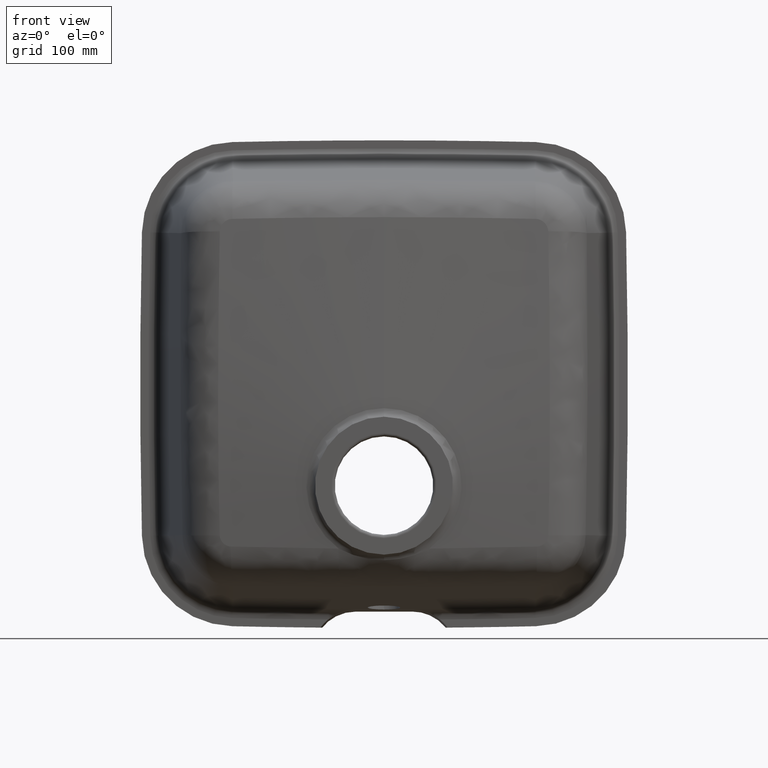
[diagram: clean part render]
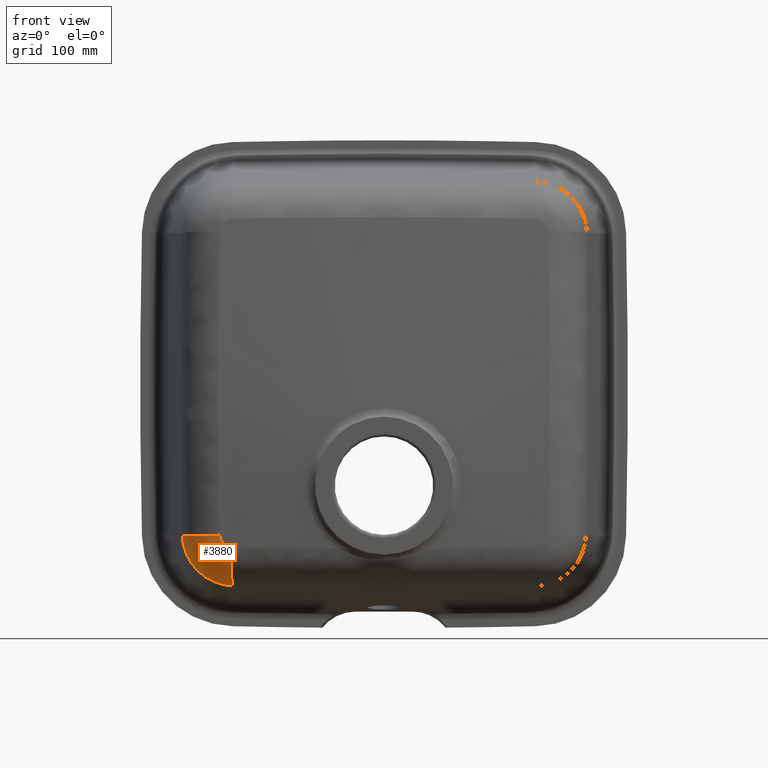
[diagram: same view with one face highlighted and labeled with its STEP entity id]
A machine part, front view. The second image highlights one B-rep face of the part: STEP entity #3880.
In plain terms, the highlighted face is a freeform B-spline surface patch.
Its self-contained STEP definition (entity closure, byte-faithful):
#25 = CARTESIAN_POINT ( 'NONE',  ( -151.1530836234906900, -6.306650159659768400, -140.3912230525803300 ) ) ;
#75 = CARTESIAN_POINT ( 'NONE',  ( -185.7389261621613600, 26.49171849676487500, -139.0273990174659100 ) ) ;
#208 = EDGE_CURVE ( 'NONE', #1592, #2864, #2088, .T. ) ;
#239 = CARTESIAN_POINT ( 'NONE',  ( -144.1516819857101600, -6.599001756632886500, -148.9251165550629700 ) ) ;
#241 = CARTESIAN_POINT ( 'NONE',  ( -151.1699892975891500, -6.305573119774270400, -140.3879739341723800 ) ) ;
#267 = CARTESIAN_POINT ( 'NONE',  ( -171.6593782094991000, -4.172936588961612800, -166.4299843006215600 ) ) ;
#279 = CARTESIAN_POINT ( 'NONE',  ( -142.0951201337946100, 26.05112180240496000, -185.6164131305762900 ) ) ;
#282 = CARTESIAN_POINT ( 'NONE',  ( -169.5437915765407400, 26.41611423768452800, -173.8482333656945400 ) ) ;
#288 = AXIS2_PLACEMENT_3D ( 'NONE', #1827, #4246, #3522 ) ;
#295 = CARTESIAN_POINT ( 'NONE',  ( -167.9301536297951700, -4.335439726647354800, -170.2325963935788000 ) ) ;
#298 = CARTESIAN_POINT ( 'NONE',  ( -184.9877870720284500, 26.51742234490956900, -146.6217716025026300 ) ) ;
#312 = CARTESIAN_POINT ( 'NONE',  ( -149.8723687722938400, -6.312732223593121400, -144.0874012246343100 ) ) ;
#315 = CARTESIAN_POINT ( 'NONE',  ( -170.6726560585034300, 26.42828120081683000, -172.8237046516478900 ) ) ;
#326 = CARTESIAN_POINT ( 'NONE',  ( -181.9262705777755400, -4.041077272516075100, -140.9236976558089500 ) ) ;
#327 = CARTESIAN_POINT ( 'NONE',  ( -147.1451164267944300, -6.428385497107097300, -147.2930047698866100 ) ) ;
#370 = CARTESIAN_POINT ( 'NONE',  ( -151.2598766581469600, -6.321826180499829000, -139.3668954623104000 ) ) ;
#467 = CARTESIAN_POINT ( 'NONE',  ( -140.8557402363300600, -6.817208511991282200, -149.5255113228016100 ) ) ;
#493 =( BOUNDED_SURFACE ( )  B_SPLINE_SURFACE ( 3, 2, ( 
 ( #916, #1275, #4392 ),
 ( #632, #2379, #279 ),
 ( #4400, #4413, #2335 ),
 ( #964, #2690, #945 ),
 ( #3378, #3392, #1677 ),
 ( #239, #3408, #1290 ),
 ( #2360, #3750, #2344 ),
 ( #1645, #4071, #3712 ),
 ( #1975, #614, #2673 ),
 ( #3075, #4099, #4086 ),
 ( #2019, #3721, #4439 ),
 ( #1630, #295, #2732 ),
 ( #4059, #1620, #1994 ),
 ( #3086, #267, #4426 ),
 ( #2008, #2702, #602 ),
 ( #4046, #3059, #3364 ),
 ( #572, #1257, #3031 ),
 ( #4145, #2819, #4473 ),
 ( #312, #3777, #2462 ),
 ( #2751, #3796, #2769 ),
 ( #716, #4456, #1708 ),
 ( #1356, #3502, #3151 ),
 ( #663, #3828, #989 ),
 ( #3437, #644, #2099 ),
 ( #25, #1691, #1053 ),
 ( #2078, #4129, #2407 ),
 ( #370, #326, #4116 ),
 ( #3115, #2061, #1020 ) ),
 .UNSPECIFIED., .F., .F., .F. ) 
 B_SPLINE_SURFACE_WITH_KNOTS ( ( 4, 2, 2, 2, 2, 2, 2, 2, 2, 2, 2, 2, 2, 4 ),
 ( 3, 3 ),
 ( -5.944463671303523700E-015, 0.002003969948534454500, 0.003005954922804654200, 0.004007939897074853900, 0.006011909845615253300, 0.007013894819885452600, 0.008015879794155652800, 0.01001984974269605100, 0.01052084222983115100, 0.01102183471696625100, 0.01202381969123645200, 0.01402778963977685000, 0.01502977461404704900, 0.01603175958831724900 ),
 ( 0.0000000000000000000, 1.000000000000000000 ),
 .UNSPECIFIED. ) 
 GEOMETRIC_REPRESENTATION_ITEM ( )  RATIONAL_B_SPLINE_SURFACE ( (
 ( 1.000000000000000000, 0.7586412035490731600, 1.000000000000000000),
 ( 1.000000000000000000, 0.7600792919562018300, 1.000000000000000000),
 ( 1.000000000000000000, 0.7614240367036120300, 1.000000000000000000),
 ( 1.000000000000000000, 0.7633154890720466000, 1.000000000000000000),
 ( 1.000000000000000000, 0.7639249554272765600, 1.000000000000000000),
 ( 1.000000000000000000, 0.7651028223930810300, 1.000000000000000000),
 ( 1.000000000000000000, 0.7656734576343738900, 1.000000000000000000),
 ( 1.000000000000000000, 0.7672916146730961500, 1.000000000000000000),
 ( 1.000000000000000000, 0.7682560728566036900, 1.000000000000000000),
 ( 1.000000000000000000, 0.7695443249893921800, 1.000000000000000000),
 ( 1.000000000000000000, 0.7699471360606468000, 1.000000000000000000),
 ( 1.000000000000000000, 0.7706993233867750500, 1.000000000000000000),
 ( 1.000000000000000000, 0.7710434007199035200, 1.000000000000000000),
 ( 1.000000000000000000, 0.7719807871079009700, 1.000000000000000000),
 ( 1.000000000000000000, 0.7724820874143542000, 1.000000000000000000),
 ( 1.000000000000000000, 0.7729578046949218100, 1.000000000000000000),
 ( 1.000000000000000000, 0.7730453281340187200, 1.000000000000000000),
 ( 1.000000000000000000, 0.7732049187344870500, 1.000000000000000000),
 ( 1.000000000000000000, 0.7732765643173467000, 1.000000000000000000),
 ( 1.000000000000000000, 0.7734665438936815200, 1.000000000000000000),
 ( 1.000000000000000000, 0.7735604768692248000, 1.000000000000000000),
 ( 1.000000000000000000, 0.7737469151163074400, 1.000000000000000000),
 ( 1.000000000000000000, 0.7737450975335618000, 1.000000000000000000),
 ( 1.000000000000000000, 0.7735456978753442200, 1.000000000000000000),
 ( 1.000000000000000000, 0.7734467391587037700, 1.000000000000000000),
 ( 1.000000000000000000, 0.7731849278249781600, 1.000000000000000000),
 ( 1.000000000000000000, 0.7730219505423058200, 1.000000000000000000),
 ( 1.000000000000000000, 0.7728262095076760000, 1.000000000000000000) ) ) 
 REPRESENTATION_ITEM ( '' )  SURFACE ( )  );
#572 = CARTESIAN_POINT ( 'NONE',  ( -149.6079029753923900, -6.320990211915809500, -144.5310517808796400 ) ) ;
#602 = CARTESIAN_POINT ( 'NONE',  ( -175.8267942922909400, 26.47944738734253500, -167.2729091012128000 ) ) ;
#614 = CARTESIAN_POINT ( 'NONE',  ( -161.5941448021424900, -4.646182537127096200, -175.1635685550052400 ) ) ;
#632 = CARTESIAN_POINT ( 'NONE',  ( -141.5333831271611600, -6.769402553731937100, -149.5116952089091700 ) ) ;
#634 = CARTESIAN_POINT ( 'NONE',  ( -175.8174428182082400, 26.47936513030745300, -167.2851058182518500 ) ) ;
#644 = CARTESIAN_POINT ( 'NONE',  ( -181.2498881193722300, -3.974835855657126200, -146.2237758452321300 ) ) ;
#647 = CARTESIAN_POINT ( 'NONE',  ( -165.9596933220924200, 26.37545172019928000, -176.7025663764929400 ) ) ;
#663 = CARTESIAN_POINT ( 'NONE',  ( -150.8753873108471200, -6.295972461976083100, -141.7409491514041800 ) ) ;
#667 = CARTESIAN_POINT ( 'NONE',  ( -185.7056263732463600, 26.49870064475822000, -140.5593196343159800 ) ) ;
#716 = CARTESIAN_POINT ( 'NONE',  ( -150.2663045561269300, -6.302580362135268300, -143.3288263381980400 ) ) ;
#817 = CARTESIAN_POINT ( 'NONE',  ( -138.1963617451925500, 30.57341635194359200, -148.4677408725759700 ) ) ;
#916 = CARTESIAN_POINT ( 'NONE',  ( -140.8557402363363700, -6.817208511990837200, -149.5255113228014900 ) ) ;
#919 = CARTESIAN_POINT ( 'NONE',  ( -150.2751142471247500, -6.302400865286515800, -143.3096947641860500 ) ) ;
#945 = CARTESIAN_POINT ( 'NONE',  ( -149.5432200394337800, 26.16045370216005500, -184.3090457549388400 ) ) ;
#946 = CARTESIAN_POINT ( 'NONE',  ( -147.6753306916448000, -6.401859452413167300, -146.8492954223565100 ) ) ;
#960 = CIRCLE ( 'NONE', #1047, 37.50000000000000700 ) ;
#964 = CARTESIAN_POINT ( 'NONE',  ( -143.1826597388973700, -6.660070784069111100, -149.2186631582371500 ) ) ;
#985 = ORIENTED_EDGE ( 'NONE', *, *, #208, .F. ) ;
#989 = CARTESIAN_POINT ( 'NONE',  ( -184.0141374624080600, 26.52455202453967000, -151.1044363105559100 ) ) ;
#992 = CARTESIAN_POINT ( 'NONE',  ( -180.6401931060238700, 26.51455514476751000, -159.5242803571296400 ) ) ;
#1006 = CARTESIAN_POINT ( 'NONE',  ( -142.0896451313375900, 26.05103652050077300, -185.6165247330452800 ) ) ;
#1020 = CARTESIAN_POINT ( 'NONE',  ( -185.7389261621613600, 26.49171849676473300, -139.0273990174660000 ) ) ;
#1023 = CARTESIAN_POINT ( 'NONE',  ( -185.7389261621613600, 26.49171849676487500, -139.0273990174659100 ) ) ;
#1047 = AXIS2_PLACEMENT_3D ( 'NONE', #817, #2853, #2549 ) ;
#1053 = CARTESIAN_POINT ( 'NONE',  ( -185.2405062141509100, 26.51387432658114900, -145.1103872251552500 ) ) ;
#1257 = CARTESIAN_POINT ( 'NONE',  ( -175.4981261274421900, -4.038121196425261200, -161.0128358618997900 ) ) ;
#1275 = CARTESIAN_POINT ( 'NONE',  ( -141.2275153968102500, -5.880159582544559200, -181.7141153128900400 ) ) ;
#1290 = CARTESIAN_POINT ( 'NONE',  ( -153.9104279951179400, 26.22152272951593600, -183.0016222512214500 ) ) ;
#1302 = B_SPLINE_CURVE_WITH_KNOTS ( 'NONE', 3,
 ( #3425, #1006, #1344, #2393, #1359, #2021, #2382, #3763, #3799, #647, #1379, #282, #315, #2363, #634, #4477, #1731, #2755, #4132, #992, #2064, #1666, #2409, #298, #3062, #2771, #667, #1023 ),
 .UNSPECIFIED., .F., .F.,
 ( 4, 2, 2, 2, 2, 2, 2, 2, 2, 2, 2, 2, 2, 4 ),
 ( 0.0000000000000000000, 0.009064029417709295500, 0.01359604412656390200, 0.01812805883541851100, 0.02719208825312772300, 0.03172410296198231700, 0.03625611767083691800, 0.04532014708854610600, 0.04758615444297342000, 0.04985216179740073500, 0.05438417650625540500, 0.06344820592396477300, 0.06798022063281941600, 0.07251223534167405800 ),
 .UNSPECIFIED. ) ;
#1344 = CARTESIAN_POINT ( 'NONE',  ( -145.0976315310828100, 26.09617488552320100, -185.2625881523563600 ) ) ;
#1356 = CARTESIAN_POINT ( 'NONE',  ( -150.6671435680734700, -6.295907168838696500, -142.3901028897769000 ) ) ;
#1359 = CARTESIAN_POINT ( 'NONE',  ( -150.9935417655728700, 26.18101306324793500, -183.9252459147300300 ) ) ;
#1379 = CARTESIAN_POINT ( 'NONE',  ( -167.1792898384183000, 26.38960896421442100, -175.7941318582533100 ) ) ;
#1592 = VERTEX_POINT ( 'NONE', #75 ) ;
#1594 = CARTESIAN_POINT ( 'NONE',  ( -150.8787337975896300, -6.296019472318078200, -141.7284151995155000 ) ) ;
#1607 = EDGE_LOOP ( 'NONE', ( #3992, #2075, #985, #2414 ) ) ;
#1620 = CARTESIAN_POINT ( 'NONE',  ( -168.8995668055985700, -4.291769771373561900, -169.3089790369354000 ) ) ;
#1630 = CARTESIAN_POINT ( 'NONE',  ( -147.6362819126524100, -6.404249659591110700, -146.8627528592753600 ) ) ;
#1645 = CARTESIAN_POINT ( 'NONE',  ( -145.4062864004060300, -6.523551911537439600, -148.4024339996728900 ) ) ;
#1666 = CARTESIAN_POINT ( 'NONE',  ( -183.0875293508658800, 26.52461589229851300, -153.9927365722277800 ) ) ;
#1677 = CARTESIAN_POINT ( 'NONE',  ( -151.0082122312234700, 26.18121982884170500, -183.9211469690727700 ) ) ;
#1680 = CARTESIAN_POINT ( 'NONE',  ( -144.1771128495345000, -6.597433010926459400, -148.9160872600026800 ) ) ;
#1691 = CARTESIAN_POINT ( 'NONE',  ( -181.4796838866166100, -3.987349327636129400, -144.9052139874853300 ) ) ;
#1694 = CARTESIAN_POINT ( 'NONE',  ( -142.2126732911809800, -6.723330255796740900, -149.4306200878975200 ) ) ;
#1708 = CARTESIAN_POINT ( 'NONE',  ( -181.3064046969309400, 26.51794412408140600, -158.1517331159738000 ) ) ;
#1712 = CARTESIAN_POINT ( 'NONE',  ( -140.8557402363300600, -6.817208511991282200, -149.5255113228016100 ) ) ;
#1731 = CARTESIAN_POINT ( 'NONE',  ( -178.3646411622251800, 26.49948109442938100, -163.4978051092051300 ) ) ;
#1827 = CARTESIAN_POINT ( 'NONE',  ( -148.5276942605364100, 31.06181887445777800, -138.1976985285541300 ) ) ;
#1975 = CARTESIAN_POINT ( 'NONE',  ( -145.9972409411537900, -6.489979185826737900, -148.0773382918440000 ) ) ;
#1977 = CARTESIAN_POINT ( 'NONE',  ( -149.8036061530504200, -6.314600429288483400, -144.2154344895612600 ) ) ;
#1994 = CARTESIAN_POINT ( 'NONE',  ( -170.6864597935539200, 26.42842781377006700, -172.8107457900001100 ) ) ;
#2008 = CARTESIAN_POINT ( 'NONE',  ( -149.0376498190844900, -6.341077099084925500, -145.3843449009962400 ) ) ;
#2019 = CARTESIAN_POINT ( 'NONE',  ( -147.1086853270429300, -6.430737149287720600, -147.3011436823989300 ) ) ;
#2021 = CARTESIAN_POINT ( 'NONE',  ( -153.8939663688967400, 26.22129713313576000, -183.0073811911006800 ) ) ;
#2061 = CARTESIAN_POINT ( 'NONE',  ( -181.9736138512944300, -4.065848008553677700, -139.5827359860889800 ) ) ;
#2064 = CARTESIAN_POINT ( 'NONE',  ( -181.3020691419455900, 26.51792422737576200, -158.1611076537091400 ) ) ;
#2075 = ORIENTED_EDGE ( 'NONE', *, *, #4386, .F. ) ;
#2078 = CARTESIAN_POINT ( 'NONE',  ( -151.2350632094891700, -6.316006984509965800, -139.7095280445779200 ) ) ;
#2081 = CARTESIAN_POINT ( 'NONE',  ( -145.4355409995638700, -6.521856753884571300, -148.3876713413936600 ) ) ;
#2088 = CIRCLE ( 'NONE', #288, 37.50000000000000000 ) ;
#2099 = CARTESIAN_POINT ( 'NONE',  ( -184.9883602086580700, 26.51741527138785800, -146.6185434355292600 ) ) ;
#2322 = CARTESIAN_POINT ( 'NONE',  ( -151.2683056474305400, -6.328805989477048800, -139.0224539532255500 ) ) ;
#2335 = CARTESIAN_POINT ( 'NONE',  ( -145.1071293515934700, 26.09631679103075200, -185.2613610898041300 ) ) ;
#2336 = CARTESIAN_POINT ( 'NONE',  ( -148.6284156352674900, -6.357989335054084800, -145.8837343670335300 ) ) ;
#2344 = CARTESIAN_POINT ( 'NONE',  ( -155.3537430798522500, 26.24113723931951000, -182.4668126391087200 ) ) ;
#2349 = EDGE_CURVE ( 'NONE', #2559, #3061, #960, .T. ) ;
#2360 = CARTESIAN_POINT ( 'NONE',  ( -144.4722783948464000, -6.579387246813706900, -148.8049641322726600 ) ) ;
#2363 = CARTESIAN_POINT ( 'NONE',  ( -173.8900858177760800, 26.46149766134772100, -169.6128304469503400 ) ) ;
#2379 = CARTESIAN_POINT ( 'NONE',  ( -143.9673856542242700, -5.694480616054539400, -181.5288337048134500 ) ) ;
#2382 = CARTESIAN_POINT ( 'NONE',  ( -155.3365982870655300, 26.24090583925146400, -182.4734603275310300 ) ) ;
#2393 = CARTESIAN_POINT ( 'NONE',  ( -149.5296321582673000, 26.16025952774527900, -184.3123661501608400 ) ) ;
#2407 = CARTESIAN_POINT ( 'NONE',  ( -185.5989092383302900, 26.50451750173268200, -142.0815909707723100 ) ) ;
#2409 = CARTESIAN_POINT ( 'NONE',  ( -184.0127997141871400, 26.52455606340719600, -151.1094156136532500 ) ) ;
#2414 = ORIENTED_EDGE ( 'NONE', *, *, #4429, .F. ) ;
#2462 = CARTESIAN_POINT ( 'NONE',  ( -179.5512182524290700, 26.50779226259589500, -161.5178529530769000 ) ) ;
#2549 = DIRECTION ( 'NONE',  ( -0.07056287577754744000, -0.9975073335880805200, 0.0000000000000000000 ) ) ;
#2559 = VERTEX_POINT ( 'NONE', #3434 ) ;
#2666 = CARTESIAN_POINT ( 'NONE',  ( -151.2515158253570500, -6.314902809483206700, -139.7085518535207600 ) ) ;
#2673 = CARTESIAN_POINT ( 'NONE',  ( -162.2098099320431900, 26.33054530051825300, -179.2305814701972800 ) ) ;
#2681 = B_SPLINE_CURVE_WITH_KNOTS ( 'NONE', 3,
 ( #2322, #2666, #241, #1594, #3703, #919, #3714, #1977, #3739, #3725, #2336, #946, #327, #3411, #2081, #3118, #1680, #3781, #4102, #1694, #3813, #1712 ),
 .UNSPECIFIED., .F., .F.,
 ( 4, 2, 2, 2, 2, 2, 2, 2, 2, 2, 4 ),
 ( 0.0000000000000000000, 0.002050524147000880400, 0.004101048294001760800, 0.005126310367502162600, 0.006151572441002564400, 0.008202096588003414100, 0.01025262073500426300, 0.01230314488200511300, 0.01332840695550555800, 0.01435366902900600400, 0.01640419317600697700 ),
 .UNSPECIFIED. ) ;
#2690 = CARTESIAN_POINT ( 'NONE',  ( -150.5519959471885200, -5.277923182276512500, -180.0746891586151700 ) ) ;
#2702 = CARTESIAN_POINT ( 'NONE',  ( -173.3113410144853500, -4.109421302377120000, -164.3601739509766700 ) ) ;
#2732 = CARTESIAN_POINT ( 'NONE',  ( -169.5584905195927900, 26.41627482651708200, -173.8353171700571800 ) ) ;
#2751 = CARTESIAN_POINT ( 'NONE',  ( -150.1178415284235000, -6.305941772584624500, -143.6358581761662100 ) ) ;
#2755 = CARTESIAN_POINT ( 'NONE',  ( -179.1623058907988500, 26.50518773352983000, -162.1911642886399500 ) ) ;
#2769 = CARTESIAN_POINT ( 'NONE',  ( -180.6452679562733600, 26.51458271376269200, -159.5141834365804500 ) ) ;
#2771 = CARTESIAN_POINT ( 'NONE',  ( -185.5988304386230800, 26.50452204507973200, -142.0827657970180300 ) ) ;
#2819 = CARTESIAN_POINT ( 'NONE',  ( -176.1834802189498800, -4.017931906967328700, -159.8609768795907700 ) ) ;
#2853 = DIRECTION ( 'NONE',  ( -0.9974154318593982900, 0.07055637472232077800, 0.01357402942289216200 ) ) ;
#2864 = VERTEX_POINT ( 'NONE', #4097 ) ;
#3031 = CARTESIAN_POINT ( 'NONE',  ( -178.3717994219554400, 26.49953427439371700, -163.4864804299451700 ) ) ;
#3059 = CARTESIAN_POINT ( 'NONE',  ( -175.1435421197896600, -4.049195607673375700, -161.5787113045507500 ) ) ;
#3061 = VERTEX_POINT ( 'NONE', #467 ) ;
#3062 = CARTESIAN_POINT ( 'NONE',  ( -185.2401452483651100, 26.51388126113777600, -145.1129281495901800 ) ) ;
#3075 = CARTESIAN_POINT ( 'NONE',  ( -146.8367313231636600, -6.444884942409530900, -147.5057555501570300 ) ) ;
#3086 = CARTESIAN_POINT ( 'NONE',  ( -148.6067420886314200, -6.358918638493754800, -145.9086999174439500 ) ) ;
#3115 = CARTESIAN_POINT ( 'NONE',  ( -151.2683056474305400, -6.328805989477048800, -139.0224539532255800 ) ) ;
#3118 = CARTESIAN_POINT ( 'NONE',  ( -144.4990306162928000, -6.577762883021431900, -148.7944422754889300 ) ) ;
#3151 = CARTESIAN_POINT ( 'NONE',  ( -183.0898651539679900, 26.52461731745330600, -153.9857817502146700 ) ) ;
#3364 = CARTESIAN_POINT ( 'NONE',  ( -177.9591650321872900, 26.49641091051122300, -164.1274982127381700 ) ) ;
#3378 = CARTESIAN_POINT ( 'NONE',  ( -143.5075506264228400, -6.639304657493039700, -149.1316080857296200 ) ) ;
#3392 = CARTESIAN_POINT ( 'NONE',  ( -151.8386004753088200, -5.199725325310938100, -179.6765093808832000 ) ) ;
#3408 = CARTESIAN_POINT ( 'NONE',  ( -154.3796269943424300, -5.048815213720801300, -178.7586202858956300 ) ) ;
#3411 = CARTESIAN_POINT ( 'NONE',  ( -146.0269103026235200, -6.488322963608480300, -148.0597773817746100 ) ) ;
#3425 = CARTESIAN_POINT ( 'NONE',  ( -139.0260622341042400, 26.00331597425095600, -185.6789727741996500 ) ) ;
#3434 = CARTESIAN_POINT ( 'NONE',  ( -139.0260622341042400, 26.00331597425095600, -185.6789727741996500 ) ) ;
#3437 = CARTESIAN_POINT ( 'NONE',  ( -151.0958108903581700, -6.303109214716938500, -140.7307684928773600 ) ) ;
#3502 = CARTESIAN_POINT ( 'NONE',  ( -179.5703860462533600, -3.949399721675317400, -152.6663544261931500 ) ) ;
#3522 = DIRECTION ( 'NONE',  ( 0.0000000000000000000, -0.9997877014874190200, -0.02060465856313624000 ) ) ;
#3694 = FACE_OUTER_BOUND ( 'NONE', #1607, .T. ) ;
#3703 = CARTESIAN_POINT ( 'NONE',  ( -150.6723687880171100, -6.295888753827644500, -142.3747334316118700 ) ) ;
#3712 = CARTESIAN_POINT ( 'NONE',  ( -159.5555020440131700, 26.29697257492147600, -180.6759458013264600 ) ) ;
#3714 = CARTESIAN_POINT ( 'NONE',  ( -150.1279761764396000, -6.305697890746412100, -143.6155557085635600 ) ) ;
#3721 = CARTESIAN_POINT ( 'NONE',  ( -165.8963676061709400, -4.430975065867981400, -171.9978124158751600 ) ) ;
#3725 = CARTESIAN_POINT ( 'NONE',  ( -149.0565515042884500, -6.340335790310349200, -145.3594738187628900 ) ) ;
#3739 = CARTESIAN_POINT ( 'NONE',  ( -149.6255807176602800, -6.320239557010831200, -144.5103822785824500 ) ) ;
#3750 = CARTESIAN_POINT ( 'NONE',  ( -155.6395397976215000, -4.975799961750203300, -178.2360425626941400 ) ) ;
#3763 = CARTESIAN_POINT ( 'NONE',  ( -159.5376223879372300, 26.29674205474239900, -180.6848736990532700 ) ) ;
#3777 = CARTESIAN_POINT ( 'NONE',  ( -176.5125270365514900, -4.008869534018923100, -159.2778050941426500 ) ) ;
#3781 = CARTESIAN_POINT ( 'NONE',  ( -143.5295055017693900, -6.637910090954438400, -149.1253848900091700 ) ) ;
#3796 = CARTESIAN_POINT ( 'NONE',  ( -177.4547967180591600, -3.984844963583706900, -157.5152295070955700 ) ) ;
#3799 = CARTESIAN_POINT ( 'NONE',  ( -162.1925545783574300, 26.33033077281822200, -179.2406958094006200 ) ) ;
#3813 = CARTESIAN_POINT ( 'NONE',  ( -141.5405881303748600, -6.768894259308862800, -149.5115483107980500 ) ) ;
#3828 = CARTESIAN_POINT ( 'NONE',  ( -180.3791819824429000, -3.949629629907819100, -150.1455587481504800 ) ) ;
#3880 = ADVANCED_FACE ( 'NONE', ( #3694 ), #493, .T. ) ;
#3992 = ORIENTED_EDGE ( 'NONE', *, *, #2349, .T. ) ;
#4046 = CARTESIAN_POINT ( 'NONE',  ( -149.5154186341076200, -6.324113575684140900, -144.6755110462015400 ) ) ;
#4059 = CARTESIAN_POINT ( 'NONE',  ( -147.8882283505465700, -6.392096672404158600, -146.6319899014822900 ) ) ;
#4071 = CARTESIAN_POINT ( 'NONE',  ( -159.2949979157764900, -4.769166052573704700, -176.5169545705323300 ) ) ;
#4086 = CARTESIAN_POINT ( 'NONE',  ( -165.9757056619085600, 26.37563954378064700, -176.6910147652284300 ) ) ;
#4097 = CARTESIAN_POINT ( 'NONE',  ( -151.2683056474305400, -6.328805989477048800, -139.0224539532255500 ) ) ;
#4099 = CARTESIAN_POINT ( 'NONE',  ( -164.8460062514803900, -4.482181927588655400, -172.8272998637502600 ) ) ;
#4102 = CARTESIAN_POINT ( 'NONE',  ( -143.2025906414892800, -6.658786385334718900, -149.2137206605019100 ) ) ;
#4116 = CARTESIAN_POINT ( 'NONE',  ( -185.7056375407138900, 26.49869830302660700, -140.5588058860665500 ) ) ;
#4129 = CARTESIAN_POINT ( 'NONE',  ( -181.8176710628459000, -4.020461464519105000, -142.2562249337163700 ) ) ;
#4132 = CARTESIAN_POINT ( 'NONE',  ( -179.5450567324451800, 26.50775203174290000, -161.5287311523572100 ) ) ;
#4145 = CARTESIAN_POINT ( 'NONE',  ( -149.7866053509378600, -6.315292008742236600, -144.2366351428376000 ) ) ;
#4246 = DIRECTION ( 'NONE',  ( -0.01975789036449615900, -0.02060063640668372000, 0.9995925367608464700 ) ) ;
#4386 = EDGE_CURVE ( 'NONE', #2864, #3061, #2681, .T. ) ;
#4392 = CARTESIAN_POINT ( 'NONE',  ( -139.0260622341041900, 26.00331597425094500, -185.6789727741995900 ) ) ;
#4400 = CARTESIAN_POINT ( 'NONE',  ( -142.1996989509041800, -6.724207695236261300, -149.4322642589005500 ) ) ;
#4413 = CARTESIAN_POINT ( 'NONE',  ( -146.6398256987895400, -5.521158381731701100, -181.0905960206768300 ) ) ;
#4426 = CARTESIAN_POINT ( 'NONE',  ( -173.9013674209474500, 26.46160584788312400, -169.5999234269893600 ) ) ;
#4429 = EDGE_CURVE ( 'NONE', #2559, #1592, #1302, .T. ) ;
#4439 = CARTESIAN_POINT ( 'NONE',  ( -167.1948339795862600, 26.38978733708765400, -175.7821486839913200 ) ) ;
#4456 = CARTESIAN_POINT ( 'NONE',  ( -178.0256007090694700, -3.972967279323488900, -156.3188873590739000 ) ) ;
#4473 = CARTESIAN_POINT ( 'NONE',  ( -179.1688400362680200, 26.50523247743180400, -162.1800527259653700 ) ) ;
#4477 = CARTESIAN_POINT ( 'NONE',  ( -177.9516627780663200, 26.49635317160873500, -164.1389593777614400 ) ) ;